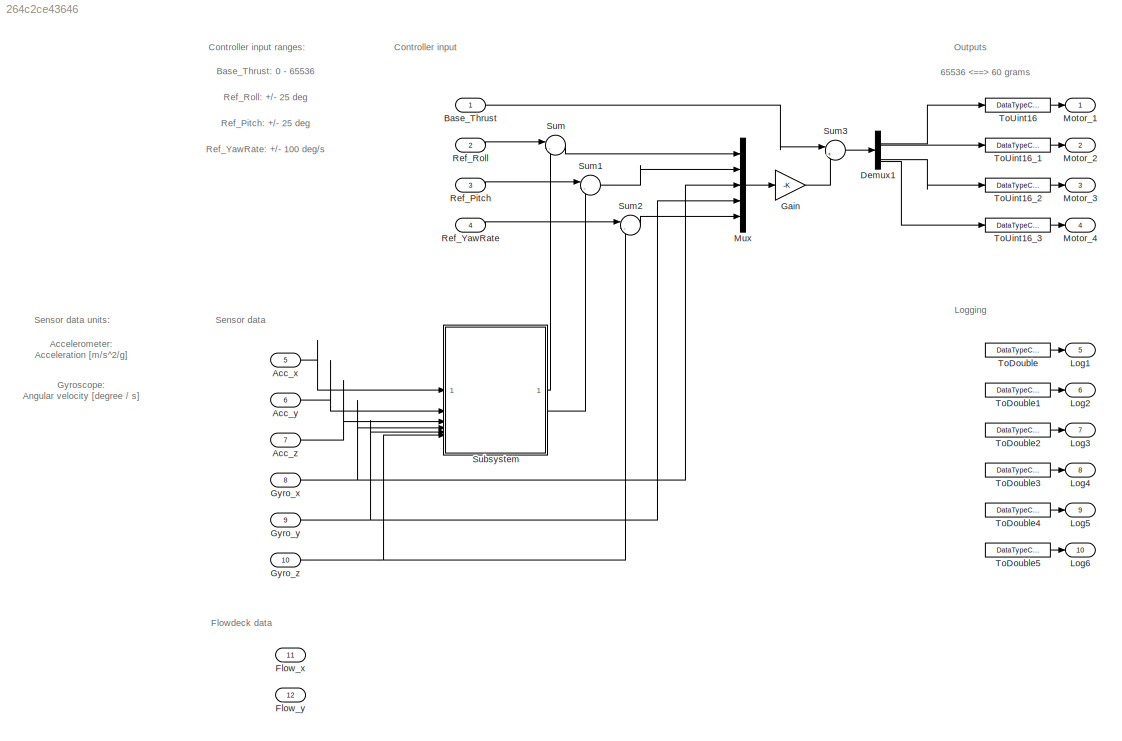
MODEL slx_264c2ce43646
KIND model
CONFIG AbsTol = auto
CONFIG EnableMultiTasking = off
CONFIG FixedStep = 0.01
CONFIG MaxStep = auto
CONFIG MinStep = auto
CONFIG RelTol = 1e-3
CONFIG SampleTimeConstraint = Unconstrained
CONFIG SolverName = FixedStepDiscrete
CONFIG StartTime = 0.0
CONFIG StopTime = 25
BLOCK [Inport] Acc_x
  OutDataTypeStr = double
  Port = 5
  PortDimensions = 1
  SignalType = real
  VarSizeSig = No
BLOCK [Inport] Acc_y
  OutDataTypeStr = double
  Port = 6
  PortDimensions = 1
  SignalType = real
  VarSizeSig = No
BLOCK [Inport] Acc_z
  OutDataTypeStr = double
  Port = 7
  PortDimensions = 1
  SignalType = real
  VarSizeSig = No
BLOCK [Inport] Base_Thrust
  OutDataTypeStr = double
  SignalType = real
BLOCK [Demux] Demux1
BLOCK [Inport] Flow_x
  OutDataTypeStr = int16
  Port = 11
  PortDimensions = 1
  SignalType = real
  VarSizeSig = No
BLOCK [Inport] Flow_y
  OutDataTypeStr = int16
  Port = 12
  PortDimensions = 1
  SignalType = real
  VarSizeSig = No
BLOCK [Gain] Gain
  Gain = -K
  Multiplication = Matrix(K*u)
BLOCK [Inport] Gyro_x
  OutDataTypeStr = double
  Port = 8
  PortDimensions = 1
  SignalType = real
  VarSizeSig = No
BLOCK [Inport] Gyro_y
  OutDataTypeStr = double
  Port = 9
  PortDimensions = 1
  SignalType = real
  VarSizeSig = No
BLOCK [Inport] Gyro_z
  OutDataTypeStr = double
  Port = 10
  PortDimensions = 1
  SignalType = real
  VarSizeSig = No
BLOCK [Outport] Log1
  OutDataTypeStr = double
  Port = 5
  VectorParamsAs1DForOutWhenUnconnected = off
BLOCK [Outport] Log2
  OutDataTypeStr = double
  Port = 6
  VectorParamsAs1DForOutWhenUnconnected = off
BLOCK [Outport] Log3
  OutDataTypeStr = double
  Port = 7
  VectorParamsAs1DForOutWhenUnconnected = off
BLOCK [Outport] Log4
  OutDataTypeStr = double
  Port = 8
  VectorParamsAs1DForOutWhenUnconnected = off
BLOCK [Outport] Log5
  OutDataTypeStr = double
  Port = 9
  VectorParamsAs1DForOutWhenUnconnected = off
BLOCK [Outport] Log6
  OutDataTypeStr = double
  Port = 10
  VectorParamsAs1DForOutWhenUnconnected = off
BLOCK [Outport] Motor_1
  LockScale = on
  OutDataTypeStr = uint16
  VectorParamsAs1DForOutWhenUnconnected = off
BLOCK [Outport] Motor_2
  LockScale = on
  OutDataTypeStr = uint16
  Port = 2
  VectorParamsAs1DForOutWhenUnconnected = off
BLOCK [Outport] Motor_3
  LockScale = on
  OutDataTypeStr = uint16
  Port = 3
  VectorParamsAs1DForOutWhenUnconnected = off
BLOCK [Outport] Motor_4
  LockScale = on
  OutDataTypeStr = uint16
  Port = 4
  VectorParamsAs1DForOutWhenUnconnected = off
BLOCK [Mux] Mux
  DisplayOption = bar
  Inputs = 5
BLOCK [Inport] Ref_Pitch
  OutDataTypeStr = double
  Port = 3
BLOCK [Inport] Ref_Roll
  OutDataTypeStr = double
  Port = 2
BLOCK [Inport] Ref_YawRate
  OutDataTypeStr = double
  Port = 4
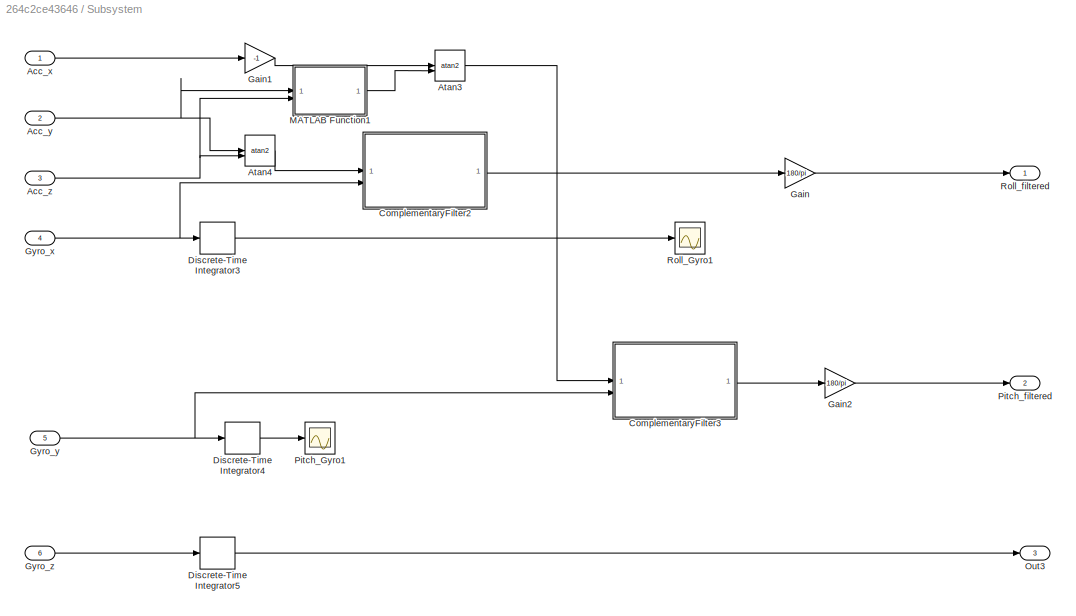
BLOCK [SubSystem] Subsystem
BLOCK [Inport] Subsystem/Acc_x
BLOCK [Inport] Subsystem/Acc_y
  Port = 2
BLOCK [Inport] Subsystem/Acc_z
  Port = 3
BLOCK [Trigonometry] Subsystem/Atan3
  Operator = atan2
BLOCK [Trigonometry] Subsystem/Atan4
  Operator = atan2
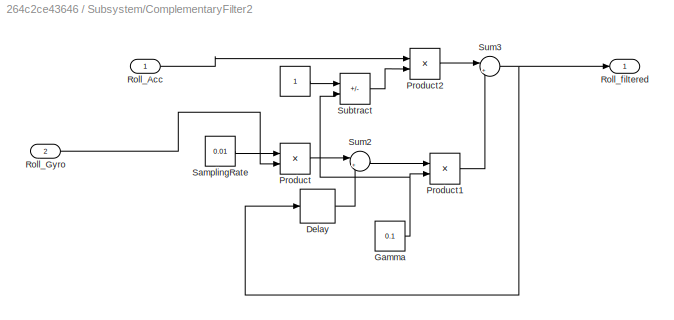
BLOCK [SubSystem] Subsystem/ComplementaryFilter2
BLOCK [Constant] Subsystem/ComplementaryFilter2/ 
BLOCK [Delay] Subsystem/ComplementaryFilter2/Delay
  DelayLength = 1
  InitialCondition = 0
  InputPortMap = u0
BLOCK [Constant] Subsystem/ComplementaryFilter2/Gamma
  Value = 0.1
BLOCK [Product] Subsystem/ComplementaryFilter2/Product
BLOCK [Product] Subsystem/ComplementaryFilter2/Product1
BLOCK [Product] Subsystem/ComplementaryFilter2/Product2
BLOCK [Inport] Subsystem/ComplementaryFilter2/Roll_Acc
BLOCK [Inport] Subsystem/ComplementaryFilter2/Roll_Gyro
  Port = 2
BLOCK [Outport] Subsystem/ComplementaryFilter2/Roll_filtered
BLOCK [Constant] Subsystem/ComplementaryFilter2/SamplingRate
  Value = 0.01
BLOCK [Sum] Subsystem/ComplementaryFilter2/Subtract
  IconShape = rectangular
  Inputs = +-
BLOCK [Sum] Subsystem/ComplementaryFilter2/Sum2
  Inputs = |++
BLOCK [Sum] Subsystem/ComplementaryFilter2/Sum3
  Inputs = |++
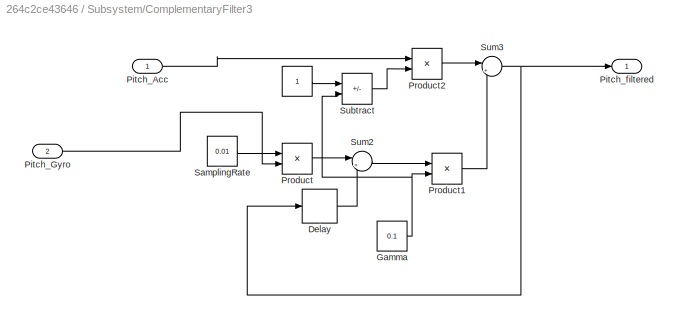
BLOCK [SubSystem] Subsystem/ComplementaryFilter3
BLOCK [Constant] Subsystem/ComplementaryFilter3/ 
BLOCK [Delay] Subsystem/ComplementaryFilter3/Delay
  DelayLength = 1
  InitialCondition = 0
  InputPortMap = u0
BLOCK [Constant] Subsystem/ComplementaryFilter3/Gamma
  Value = 0.1
BLOCK [Inport] Subsystem/ComplementaryFilter3/Pitch_Acc
BLOCK [Inport] Subsystem/ComplementaryFilter3/Pitch_Gyro
  Port = 2
BLOCK [Outport] Subsystem/ComplementaryFilter3/Pitch_filtered
BLOCK [Product] Subsystem/ComplementaryFilter3/Product
BLOCK [Product] Subsystem/ComplementaryFilter3/Product1
BLOCK [Product] Subsystem/ComplementaryFilter3/Product2
BLOCK [Constant] Subsystem/ComplementaryFilter3/SamplingRate
  Value = 0.01
BLOCK [Sum] Subsystem/ComplementaryFilter3/Subtract
  IconShape = rectangular
  Inputs = +-
BLOCK [Sum] Subsystem/ComplementaryFilter3/Sum2
  Inputs = |++
BLOCK [Sum] Subsystem/ComplementaryFilter3/Sum3
  Inputs = |++
BLOCK [DiscreteIntegrator] Subsystem/Discrete-Time Integrator3
  ICPrevOutput = DiscIntNeverNeededParam
  ICPrevScaledInput = DiscIntNeverNeededParam
  InitialConditionSetting = Auto
  SampleTime = 0.01
  gainval = 1
BLOCK [DiscreteIntegrator] Subsystem/Discrete-Time Integrator4
  ICPrevOutput = DiscIntNeverNeededParam
  ICPrevScaledInput = DiscIntNeverNeededParam
  InitialConditionSetting = Auto
  SampleTime = 0.01
  gainval = 1
BLOCK [DiscreteIntegrator] Subsystem/Discrete-Time Integrator5
  ICPrevOutput = DiscIntNeverNeededParam
  ICPrevScaledInput = DiscIntNeverNeededParam
  InitialConditionSetting = Auto
  SampleTime = 0.01
  gainval = 1
BLOCK [Gain] Subsystem/Gain
  Gain = 180/pi
BLOCK [Gain] Subsystem/Gain1
  Gain = -1
BLOCK [Gain] Subsystem/Gain2
  Gain = 180/pi
BLOCK [Inport] Subsystem/Gyro_x
  Port = 4
BLOCK [Inport] Subsystem/Gyro_y
  Port = 5
BLOCK [Inport] Subsystem/Gyro_z
  Port = 6
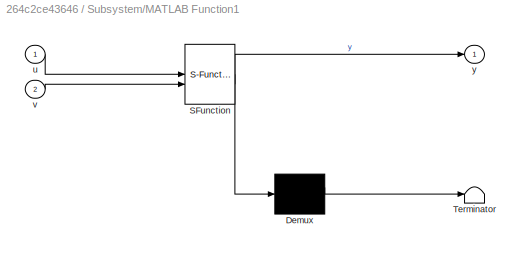
BLOCK [SubSystem] Subsystem/MATLAB Function1
  ErrorFcn = Stateflow.Translate.translate
  PermitHierarchicalResolution = ExplicitOnly
  SFBlockType = MATLAB Function
  TreatAsAtomicUnit = on
BLOCK [Demux] Subsystem/MATLAB Function1/ Demux 
  Outputs = 1
BLOCK [S-Function] Subsystem/MATLAB Function1/ SFunction 
  EnableBusSupport = on
  FunctionName = sf_sfun
  PortCounts = [2 2]
  SFcnIsStateOwnerBlock = off
  SFunctionDeploymentMode = off
  Tag = Stateflow S-Function 1
BLOCK [Terminator] Subsystem/MATLAB Function1/ Terminator 
BLOCK [Inport] Subsystem/MATLAB Function1/u
BLOCK [Inport] Subsystem/MATLAB Function1/v
  Port = 2
BLOCK [Outport] Subsystem/MATLAB Function1/y
BLOCK [Outport] Subsystem/Out3
  Port = 3
BLOCK [Scope] Subsystem/Pitch_Gyro1
  Floating = off
  NumInputPorts = 1
  ScopeSpecificationString = Simulink.scopes.TimeScopeBlockCfg('CurrentConfiguration', extmgr.ConfigurationSet(extmgr.Configuration('Core','General UI',true),extmgr.Configuration('Core','Source UI',true),extmgr.Configuration('Sources','WiredSimulink',true,'DataLoggingVariableName','ScopeData1'),extmgr.Configuration('Visuals','Time Domain',true,'SerializedDisplays',{struct('MinYLimReal','-46614498043021145417972748579655365542...<+3950ch>
BLOCK [Outport] Subsystem/Pitch_filtered
  Port = 2
BLOCK [Scope] Subsystem/Roll_Gyro1
  Floating = off
  NumInputPorts = 1
  ScopeSpecificationString = Simulink.scopes.TimeScopeBlockCfg('CurrentConfiguration', extmgr.ConfigurationSet(extmgr.Configuration('Core','General UI',true),extmgr.Configuration('Core','Source UI',true),extmgr.Configuration('Sources','WiredSimulink',true,'DataLoggingVariableName','ScopeData3'),extmgr.Configuration('Visuals','Time Domain',true,'SerializedDisplays',{struct('MinYLimReal','-56.3928','MaxYLimReal','55.33648','YLa...<+1585ch>
BLOCK [Outport] Subsystem/Roll_filtered
BLOCK [Sum] Sum
  Inputs = |-+
BLOCK [Sum] Sum1
  Inputs = |-+
BLOCK [Sum] Sum2
  Inputs = |-+
BLOCK [Sum] Sum3
  Inputs = |++
  NameLocation = top
BLOCK [DataTypeConversion] ToDouble
  OutDataTypeStr = double
  RndMeth = Floor
BLOCK [DataTypeConversion] ToDouble1
  OutDataTypeStr = double
  RndMeth = Floor
BLOCK [DataTypeConversion] ToDouble2
  OutDataTypeStr = double
  RndMeth = Floor
BLOCK [DataTypeConversion] ToDouble3
  OutDataTypeStr = double
  RndMeth = Floor
BLOCK [DataTypeConversion] ToDouble4
  OutDataTypeStr = double
  RndMeth = Floor
BLOCK [DataTypeConversion] ToDouble5
  OutDataTypeStr = double
  RndMeth = Floor
BLOCK [DataTypeConversion] ToUint16
  OutDataTypeStr = uint16
  RndMeth = Floor
BLOCK [DataTypeConversion] ToUint16_1
  OutDataTypeStr = uint16
  RndMeth = Floor
BLOCK [DataTypeConversion] ToUint16_2
  OutDataTypeStr = uint16
  RndMeth = Floor
BLOCK [DataTypeConversion] ToUint16_3
  OutDataTypeStr = uint16
  RndMeth = Floor
ANNOTATION (root): 65536 60 grams
ANNOTATION (root): Accelerometer: Acceleration [m/s^2/g]
ANNOTATION (root): Base_Thrust: 0 - 65536
ANNOTATION (root): Controller input
ANNOTATION (root): Controller input ranges:
ANNOTATION (root): Flowdeck data
ANNOTATION (root): Gyroscope: Angular velocity [degree / s]
ANNOTATION (root): Logging
ANNOTATION (root): Outputs
ANNOTATION (root): Ref_Pitch: +/- 25 deg
ANNOTATION (root): Ref_Roll: +/- 25 deg
ANNOTATION (root): Ref_YawRate: +/- 100 deg/s
ANNOTATION (root): Sensor data
ANNOTATION (root): Sensor data units:
LINE Acc_x:1 -> Subsystem:1
LINE Acc_y:1 -> Subsystem:2
LINE Acc_z:1 -> Subsystem:3
LINE Base_Thrust:1 -> Sum3:1
LINE Demux1:1 -> ToUint16:1
LINE Demux1:2 -> ToUint16_1:1
LINE Demux1:3 -> ToUint16_2:1
LINE Demux1:4 -> ToUint16_3:1
LINE Gain:1 -> Sum3:2
NET Gyro_x:1 -> Mux:3, Subsystem:4
NET Gyro_y:1 -> Mux:4, Subsystem:5
NET Gyro_z:1 -> Subsystem:6, Sum2:2
LINE Mux:1 -> Gain:1
LINE Ref_Pitch:1 -> Sum1:1
LINE Ref_Roll:1 -> Sum:1
LINE Ref_YawRate:1 -> Sum2:1
LINE Subsystem/Acc_x:1 -> Subsystem/Gain1:1
NET Subsystem/Acc_y:1 -> Subsystem/Atan4:1, Subsystem/MATLAB Function1:1
NET Subsystem/Acc_z:1 -> Subsystem/Atan4:2, Subsystem/MATLAB Function1:2
LINE Subsystem/Atan3:1 -> Subsystem/ComplementaryFilter3:1
LINE Subsystem/Atan4:1 -> Subsystem/ComplementaryFilter2:1
LINE Subsystem/ComplementaryFilter2/ :1 -> Subsystem/ComplementaryFilter2/Subtract:1
LINE Subsystem/ComplementaryFilter2/Delay:1 -> Subsystem/ComplementaryFilter2/Sum2:2
NET Subsystem/ComplementaryFilter2/Gamma:1 -> Subsystem/ComplementaryFilter2/Product1:2, Subsystem/ComplementaryFilter2/Subtract:2
LINE Subsystem/ComplementaryFilter2/Product1:1 -> Subsystem/ComplementaryFilter2/Sum3:2
LINE Subsystem/ComplementaryFilter2/Product2:1 -> Subsystem/ComplementaryFilter2/Sum3:1
LINE Subsystem/ComplementaryFilter2/Product:1 -> Subsystem/ComplementaryFilter2/Sum2:1
LINE Subsystem/ComplementaryFilter2/Roll_Acc:1 -> Subsystem/ComplementaryFilter2/Product2:1
LINE Subsystem/ComplementaryFilter2/Roll_Gyro:1 -> Subsystem/ComplementaryFilter2/Product:2
LINE Subsystem/ComplementaryFilter2/SamplingRate:1 -> Subsystem/ComplementaryFilter2/Product:1
LINE Subsystem/ComplementaryFilter2/Subtract:1 -> Subsystem/ComplementaryFilter2/Product2:2
LINE Subsystem/ComplementaryFilter2/Sum2:1 -> Subsystem/ComplementaryFilter2/Product1:1
NET Subsystem/ComplementaryFilter2/Sum3:1 -> Subsystem/ComplementaryFilter2/Delay:1, Subsystem/ComplementaryFilter2/Roll_filtered:1
LINE Subsystem/ComplementaryFilter2:1 -> Subsystem/Gain:1
LINE Subsystem/ComplementaryFilter3/ :1 -> Subsystem/ComplementaryFilter3/Subtract:1
LINE Subsystem/ComplementaryFilter3/Delay:1 -> Subsystem/ComplementaryFilter3/Sum2:2
NET Subsystem/ComplementaryFilter3/Gamma:1 -> Subsystem/ComplementaryFilter3/Product1:2, Subsystem/ComplementaryFilter3/Subtract:2
LINE Subsystem/ComplementaryFilter3/Pitch_Acc:1 -> Subsystem/ComplementaryFilter3/Product2:1
LINE Subsystem/ComplementaryFilter3/Pitch_Gyro:1 -> Subsystem/ComplementaryFilter3/Product:2
LINE Subsystem/ComplementaryFilter3/Product1:1 -> Subsystem/ComplementaryFilter3/Sum3:2
LINE Subsystem/ComplementaryFilter3/Product2:1 -> Subsystem/ComplementaryFilter3/Sum3:1
LINE Subsystem/ComplementaryFilter3/Product:1 -> Subsystem/ComplementaryFilter3/Sum2:1
LINE Subsystem/ComplementaryFilter3/SamplingRate:1 -> Subsystem/ComplementaryFilter3/Product:1
LINE Subsystem/ComplementaryFilter3/Subtract:1 -> Subsystem/ComplementaryFilter3/Product2:2
LINE Subsystem/ComplementaryFilter3/Sum2:1 -> Subsystem/ComplementaryFilter3/Product1:1
NET Subsystem/ComplementaryFilter3/Sum3:1 -> Subsystem/ComplementaryFilter3/Delay:1, Subsystem/ComplementaryFilter3/Pitch_filtered:1
LINE Subsystem/ComplementaryFilter3:1 -> Subsystem/Gain2:1
LINE Subsystem/Discrete-Time Integrator3:1 -> Subsystem/Roll_Gyro1:1
LINE Subsystem/Discrete-Time Integrator4:1 -> Subsystem/Pitch_Gyro1:1
LINE Subsystem/Discrete-Time Integrator5:1 -> Subsystem/Out3:1
LINE Subsystem/Gain1:1 -> Subsystem/Atan3:1
LINE Subsystem/Gain2:1 -> Subsystem/Pitch_filtered:1
LINE Subsystem/Gain:1 -> Subsystem/Roll_filtered:1
NET Subsystem/Gyro_x:1 -> Subsystem/ComplementaryFilter2:2, Subsystem/Discrete-Time Integrator3:1
NET Subsystem/Gyro_y:1 -> Subsystem/ComplementaryFilter3:2, Subsystem/Discrete-Time Integrator4:1
LINE Subsystem/Gyro_z:1 -> Subsystem/Discrete-Time Integrator5:1
LINE Subsystem/MATLAB Function1:1 -> Subsystem/Atan3:2
LINE Subsystem:1 -> Sum:2
LINE Subsystem:2 -> Sum1:2
LINE Sum1:1 -> Mux:2
LINE Sum2:1 -> Mux:5
LINE Sum3:1 -> Demux1:1
LINE Sum:1 -> Mux:1
LINE ToDouble1:1 -> Log2:1
LINE ToDouble2:1 -> Log3:1
LINE ToDouble3:1 -> Log4:1
LINE ToDouble4:1 -> Log5:1
LINE ToDouble5:1 -> Log6:1
LINE ToDouble:1 -> Log1:1
LINE ToUint16:1 -> Motor_1:1
LINE ToUint16_1:1 -> Motor_2:1
LINE ToUint16_2:1 -> Motor_3:1
LINE ToUint16_3:1 -> Motor_4:1
note: NET lines group one-source signal fan-out (src -> all destinations, sorted); 1:1 wires keep LINE
CHART Subsystem/MATLAB Function1 states=1 transitions=1
  STATE_LABEL 'eML_blk_kernel()'
  STATE_LABEL 'SCRIPT:\nfunction y = fcn(u,v)\n\ny = sqrt(u*u+v*v);\nend'
CHART  states=0 transitions=0
